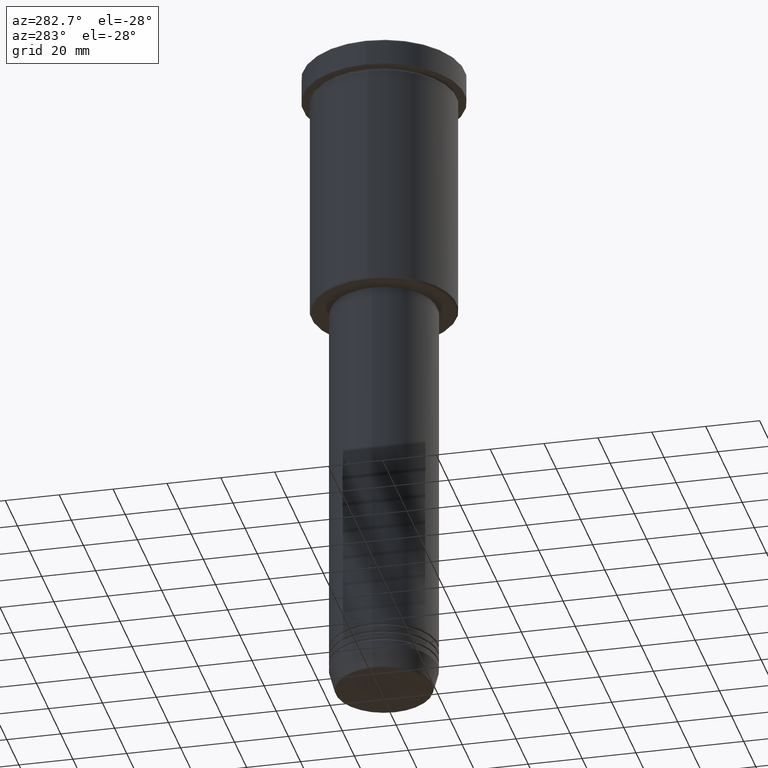
[diagram: clean part render]
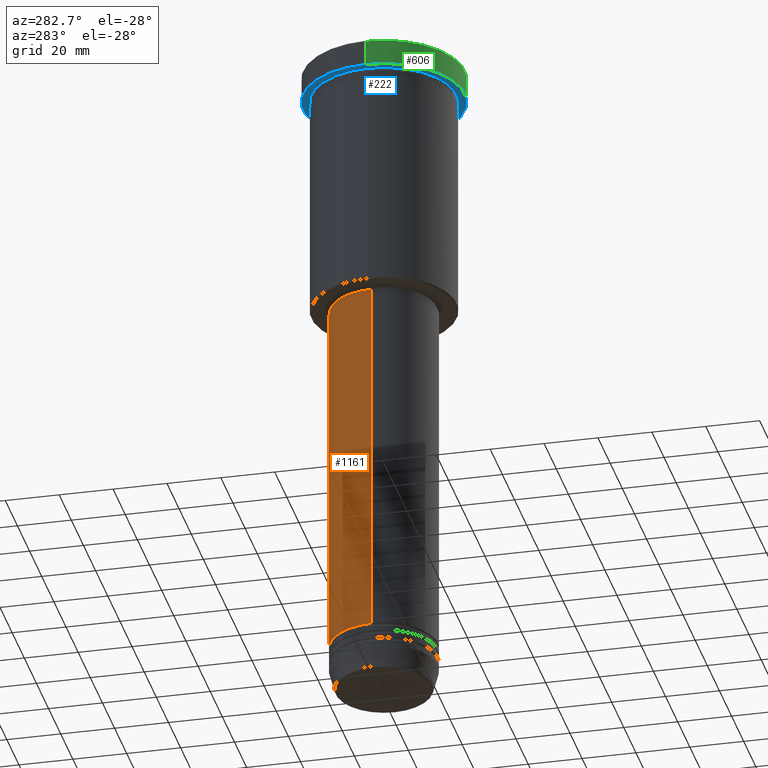
[diagram: same view with three faces highlighted in distinct colors, each labeled with its STEP entity id]
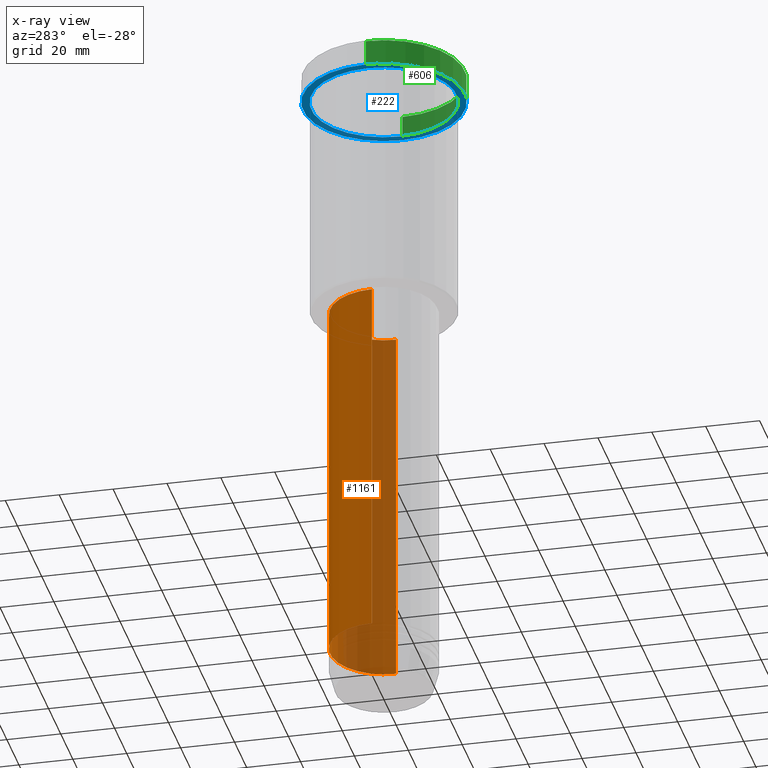
[diagram: x-ray of the same camera — body ghosted, the three highlighted faces saturated]
A machine part, auxiliary view with three faces highlighted in distinct colors.
The next image is the same camera in x-ray (body ghosted, the three faces saturated) — at least one of them is partly hidden behind the body in this view.
Their STEP definitions:

[orange] entity #1161 — the highlighted cylindrical surface (partial cylindrical patch) has radius 20 mm, axis along (-0, -0, 1).
#45 = EDGE_CURVE ( 'NONE', #230, #772, #632, .T. ) ;
#80 = EDGE_CURVE ( 'NONE', #1045, #772, #1169, .T. ) ;
#117 = ORIENTED_EDGE ( 'NONE', *, *, #355, .F. ) ;
#198 = CARTESIAN_POINT ( 'NONE',  ( 20.00000000000000000, 0.000000000000000000, -97.00000000000000000 ) ) ;
#200 = FACE_OUTER_BOUND ( 'NONE', #506, .T. ) ;
#205 = DIRECTION ( 'NONE',  ( 1.000000000000000000, 0.000000000000000000, 0.000000000000000000 ) ) ;
#226 = CARTESIAN_POINT ( 'NONE',  ( 0.000000000000000000, 0.000000000000000000, -234.0000000000000000 ) ) ;
#230 = VERTEX_POINT ( 'NONE', #198 ) ;
#254 = DIRECTION ( 'NONE',  ( 1.000000000000000000, 0.000000000000000000, 0.000000000000000000 ) ) ;
#262 = CARTESIAN_POINT ( 'NONE',  ( -20.00000000000000000, 2.449293598294706513E-15, -234.0000000000000000 ) ) ;
#297 = ORIENTED_EDGE ( 'NONE', *, *, #45, .F. ) ;
#307 = CARTESIAN_POINT ( 'NONE',  ( 20.00000000000000000, 0.000000000000000000, 0.000000000000000000 ) ) ;
#354 = DIRECTION ( 'NONE',  ( -0.000000000000000000, -0.000000000000000000, 1.000000000000000000 ) ) ;
#355 = EDGE_CURVE ( 'NONE', #599, #230, #946, .T. ) ;
#386 = VECTOR ( 'NONE', #720, 1000.000000000000000 ) ;
#390 = DIRECTION ( 'NONE',  ( -0.000000000000000000, -0.000000000000000000, 1.000000000000000000 ) ) ;
#479 = DIRECTION ( 'NONE',  ( -0.000000000000000000, -0.000000000000000000, 1.000000000000000000 ) ) ;
#506 = EDGE_LOOP ( 'NONE', ( #674, #841, #297, #117 ) ) ;
#516 = CARTESIAN_POINT ( 'NONE',  ( -20.00000000000000000, 2.449293598294706513E-15, 0.000000000000000000 ) ) ;
#546 = AXIS2_PLACEMENT_3D ( 'NONE', #1108, #390, #205 ) ;
#599 = VERTEX_POINT ( 'NONE', #718 ) ;
#613 = CARTESIAN_POINT ( 'NONE',  ( 0.000000000000000000, 0.000000000000000000, -97.00000000000000000 ) ) ;
#632 = CIRCLE ( 'NONE', #656, 20.00000000000000000 ) ;
#646 = CYLINDRICAL_SURFACE ( 'NONE', #546, 20.00000000000000000 ) ;
#656 = AXIS2_PLACEMENT_3D ( 'NONE', #613, #354, #254 ) ;
#674 = ORIENTED_EDGE ( 'NONE', *, *, #854, .T. ) ;
#675 = DIRECTION ( 'NONE',  ( 1.000000000000000000, 0.000000000000000000, 0.000000000000000000 ) ) ;
#698 = DIRECTION ( 'NONE',  ( -0.000000000000000000, -0.000000000000000000, 1.000000000000000000 ) ) ;
#718 = CARTESIAN_POINT ( 'NONE',  ( 20.00000000000000000, 0.000000000000000000, -234.0000000000000000 ) ) ;
#720 = DIRECTION ( 'NONE',  ( -0.000000000000000000, -0.000000000000000000, 1.000000000000000000 ) ) ;
#772 = VERTEX_POINT ( 'NONE', #1105 ) ;
#841 = ORIENTED_EDGE ( 'NONE', *, *, #80, .T. ) ;
#854 = EDGE_CURVE ( 'NONE', #599, #1045, #1075, .T. ) ;
#946 = LINE ( 'NONE', #307, #1060 ) ;
#1017 = AXIS2_PLACEMENT_3D ( 'NONE', #226, #698, #675 ) ;
#1045 = VERTEX_POINT ( 'NONE', #262 ) ;
#1060 = VECTOR ( 'NONE', #479, 1000.000000000000000 ) ;
#1075 = CIRCLE ( 'NONE', #1017, 20.00000000000000000 ) ;
#1105 = CARTESIAN_POINT ( 'NONE',  ( -20.00000000000000000, 2.449293598294706513E-15, -97.00000000000000000 ) ) ;
#1108 = CARTESIAN_POINT ( 'NONE',  ( 0.000000000000000000, 0.000000000000000000, 0.000000000000000000 ) ) ;
#1161 = ADVANCED_FACE ( 'NONE', ( #200 ), #646, .T. ) ;
#1169 = LINE ( 'NONE', #516, #386 ) ;

[blue] entity #222 — the highlighted planar face has unit normal (0, 0, -1).
#6 = DIRECTION ( 'NONE',  ( 1.000000000000000000, 0.000000000000000000, 0.000000000000000000 ) ) ;
#21 = DIRECTION ( 'NONE',  ( -1.000000000000000000, 0.000000000000000000, -0.000000000000000000 ) ) ;
#74 = EDGE_CURVE ( 'NONE', #1122, #1067, #422, .T. ) ;
#151 = AXIS2_PLACEMENT_3D ( 'NONE', #752, #1014, #6 ) ;
#155 = DIRECTION ( 'NONE',  ( -1.000000000000000000, 0.000000000000000000, 0.000000000000000000 ) ) ;
#164 = CARTESIAN_POINT ( 'NONE',  ( 0.000000000000000000, 0.000000000000000000, -9.999999999999992895 ) ) ;
#186 = DIRECTION ( 'NONE',  ( -1.000000000000000000, 0.000000000000000000, 0.000000000000000000 ) ) ;
#222 = ADVANCED_FACE ( 'NONE', ( #917, #552 ), #378, .T. ) ;
#237 = CIRCLE ( 'NONE', #1092, 27.00000000000000355 ) ;
#283 = EDGE_CURVE ( 'NONE', #1067, #1122, #237, .T. ) ;
#347 = AXIS2_PLACEMENT_3D ( 'NONE', #164, #526, #1076 ) ;
#370 = CARTESIAN_POINT ( 'NONE',  ( 0.000000000000000000, 0.000000000000000000, -9.999999999999992895 ) ) ;
#378 = PLANE ( 'NONE',  #978 ) ;
#422 = CIRCLE ( 'NONE', #729, 27.00000000000000355 ) ;
#443 = VERTEX_POINT ( 'NONE', #762 ) ;
#463 = DIRECTION ( 'NONE',  ( 0.000000000000000000, 0.000000000000000000, -1.000000000000000000 ) ) ;
#510 = EDGE_CURVE ( 'NONE', #443, #1038, #711, .T. ) ;
#526 = DIRECTION ( 'NONE',  ( -0.000000000000000000, -0.000000000000000000, 1.000000000000000000 ) ) ;
#527 = CARTESIAN_POINT ( 'NONE',  ( 0.000000000000000000, 0.000000000000000000, -9.999999999999992895 ) ) ;
#552 = FACE_OUTER_BOUND ( 'NONE', #663, .T. ) ;
#564 = CARTESIAN_POINT ( 'NONE',  ( 0.000000000000000000, 30.00000000000000000, -9.999999999999992895 ) ) ;
#663 = EDGE_LOOP ( 'NONE', ( #1159, #1146 ) ) ;
#711 = CIRCLE ( 'NONE', #347, 30.00000000000000000 ) ;
#717 = CARTESIAN_POINT ( 'NONE',  ( 30.00000000000000000, 0.000000000000000000, -9.999999999999992895 ) ) ;
#729 = AXIS2_PLACEMENT_3D ( 'NONE', #527, #907, #155 ) ;
#737 = DIRECTION ( 'NONE',  ( -0.000000000000000000, -0.000000000000000000, 1.000000000000000000 ) ) ;
#752 = CARTESIAN_POINT ( 'NONE',  ( 0.000000000000000000, 0.000000000000000000, -9.999999999999992895 ) ) ;
#762 = CARTESIAN_POINT ( 'NONE',  ( -30.00000000000000000, 3.673940397442059178E-15, -9.999999999999992895 ) ) ;
#802 = ORIENTED_EDGE ( 'NONE', *, *, #74, .T. ) ;
#816 = ORIENTED_EDGE ( 'NONE', *, *, #283, .T. ) ;
#876 = CIRCLE ( 'NONE', #151, 30.00000000000000000 ) ;
#907 = DIRECTION ( 'NONE',  ( -0.000000000000000000, -0.000000000000000000, 1.000000000000000000 ) ) ;
#917 = FACE_BOUND ( 'NONE', #1129, .T. ) ;
#978 = AXIS2_PLACEMENT_3D ( 'NONE', #564, #463, #21 ) ;
#1004 = CARTESIAN_POINT ( 'NONE',  ( -27.00000000000000355, 0.000000000000000000, -9.999999999999992895 ) ) ;
#1014 = DIRECTION ( 'NONE',  ( -0.000000000000000000, -0.000000000000000000, 1.000000000000000000 ) ) ;
#1025 = CARTESIAN_POINT ( 'NONE',  ( 27.00000000000000355, 3.306546357697854128E-15, -9.999999999999992895 ) ) ;
#1038 = VERTEX_POINT ( 'NONE', #717 ) ;
#1067 = VERTEX_POINT ( 'NONE', #1004 ) ;
#1076 = DIRECTION ( 'NONE',  ( 1.000000000000000000, 0.000000000000000000, 0.000000000000000000 ) ) ;
#1092 = AXIS2_PLACEMENT_3D ( 'NONE', #370, #737, #186 ) ;
#1115 = EDGE_CURVE ( 'NONE', #1038, #443, #876, .T. ) ;
#1122 = VERTEX_POINT ( 'NONE', #1025 ) ;
#1129 = EDGE_LOOP ( 'NONE', ( #816, #802 ) ) ;
#1146 = ORIENTED_EDGE ( 'NONE', *, *, #510, .F. ) ;
#1159 = ORIENTED_EDGE ( 'NONE', *, *, #1115, .F. ) ;

[green] entity #606 — the highlighted cylindrical surface (partial cylindrical patch) has radius 30 mm, axis along (-0, -0, 1).
#18 = ORIENTED_EDGE ( 'NONE', *, *, #956, .T. ) ;
#73 = DIRECTION ( 'NONE',  ( -0.000000000000000000, -0.000000000000000000, 1.000000000000000000 ) ) ;
#75 = DIRECTION ( 'NONE',  ( 1.000000000000000000, 0.000000000000000000, 0.000000000000000000 ) ) ;
#87 = LINE ( 'NONE', #742, #882 ) ;
#164 = CARTESIAN_POINT ( 'NONE',  ( 0.000000000000000000, 0.000000000000000000, -9.999999999999992895 ) ) ;
#169 = DIRECTION ( 'NONE',  ( -0.000000000000000000, -0.000000000000000000, 1.000000000000000000 ) ) ;
#219 = ORIENTED_EDGE ( 'NONE', *, *, #1012, .F. ) ;
#247 = EDGE_CURVE ( 'NONE', #1038, #849, #87, .T. ) ;
#250 = CARTESIAN_POINT ( 'NONE',  ( -30.00000000000000000, 3.673940397442059178E-15, 0.000000000000000000 ) ) ;
#259 = CYLINDRICAL_SURFACE ( 'NONE', #439, 30.00000000000000000 ) ;
#322 = ORIENTED_EDGE ( 'NONE', *, *, #247, .T. ) ;
#345 = CARTESIAN_POINT ( 'NONE',  ( -30.00000000000000000, 3.673940397442059178E-15, -0.5000000000000073275 ) ) ;
#347 = AXIS2_PLACEMENT_3D ( 'NONE', #164, #526, #1076 ) ;
#421 = CIRCLE ( 'NONE', #940, 30.00000000000000000 ) ;
#439 = AXIS2_PLACEMENT_3D ( 'NONE', #892, #169, #75 ) ;
#443 = VERTEX_POINT ( 'NONE', #762 ) ;
#510 = EDGE_CURVE ( 'NONE', #443, #1038, #711, .T. ) ;
#526 = DIRECTION ( 'NONE',  ( -0.000000000000000000, -0.000000000000000000, 1.000000000000000000 ) ) ;
#539 = CARTESIAN_POINT ( 'NONE',  ( 0.000000000000000000, 0.000000000000000000, -0.5000000000000073275 ) ) ;
#600 = CARTESIAN_POINT ( 'NONE',  ( 30.00000000000000000, 0.000000000000000000, -0.5000000000000073275 ) ) ;
#606 = ADVANCED_FACE ( 'NONE', ( #992 ), #259, .T. ) ;
#616 = DIRECTION ( 'NONE',  ( 1.000000000000000000, 0.000000000000000000, 0.000000000000000000 ) ) ;
#634 = LINE ( 'NONE', #250, #967 ) ;
#711 = CIRCLE ( 'NONE', #347, 30.00000000000000000 ) ;
#717 = CARTESIAN_POINT ( 'NONE',  ( 30.00000000000000000, 0.000000000000000000, -9.999999999999992895 ) ) ;
#742 = CARTESIAN_POINT ( 'NONE',  ( 30.00000000000000000, 0.000000000000000000, 0.000000000000000000 ) ) ;
#747 = DIRECTION ( 'NONE',  ( -0.000000000000000000, -0.000000000000000000, 1.000000000000000000 ) ) ;
#762 = CARTESIAN_POINT ( 'NONE',  ( -30.00000000000000000, 3.673940397442059178E-15, -9.999999999999992895 ) ) ;
#796 = ORIENTED_EDGE ( 'NONE', *, *, #510, .T. ) ;
#849 = VERTEX_POINT ( 'NONE', #600 ) ;
#882 = VECTOR ( 'NONE', #747, 1000.000000000000000 ) ;
#892 = CARTESIAN_POINT ( 'NONE',  ( 0.000000000000000000, 0.000000000000000000, 0.000000000000000000 ) ) ;
#909 = DIRECTION ( 'NONE',  ( 0.000000000000000000, 0.000000000000000000, -1.000000000000000000 ) ) ;
#940 = AXIS2_PLACEMENT_3D ( 'NONE', #539, #909, #616 ) ;
#948 = VERTEX_POINT ( 'NONE', #345 ) ;
#956 = EDGE_CURVE ( 'NONE', #849, #948, #421, .T. ) ;
#967 = VECTOR ( 'NONE', #73, 1000.000000000000000 ) ;
#992 = FACE_OUTER_BOUND ( 'NONE', #1135, .T. ) ;
#1012 = EDGE_CURVE ( 'NONE', #443, #948, #634, .T. ) ;
#1038 = VERTEX_POINT ( 'NONE', #717 ) ;
#1076 = DIRECTION ( 'NONE',  ( 1.000000000000000000, 0.000000000000000000, 0.000000000000000000 ) ) ;
#1135 = EDGE_LOOP ( 'NONE', ( #219, #796, #322, #18 ) ) ;